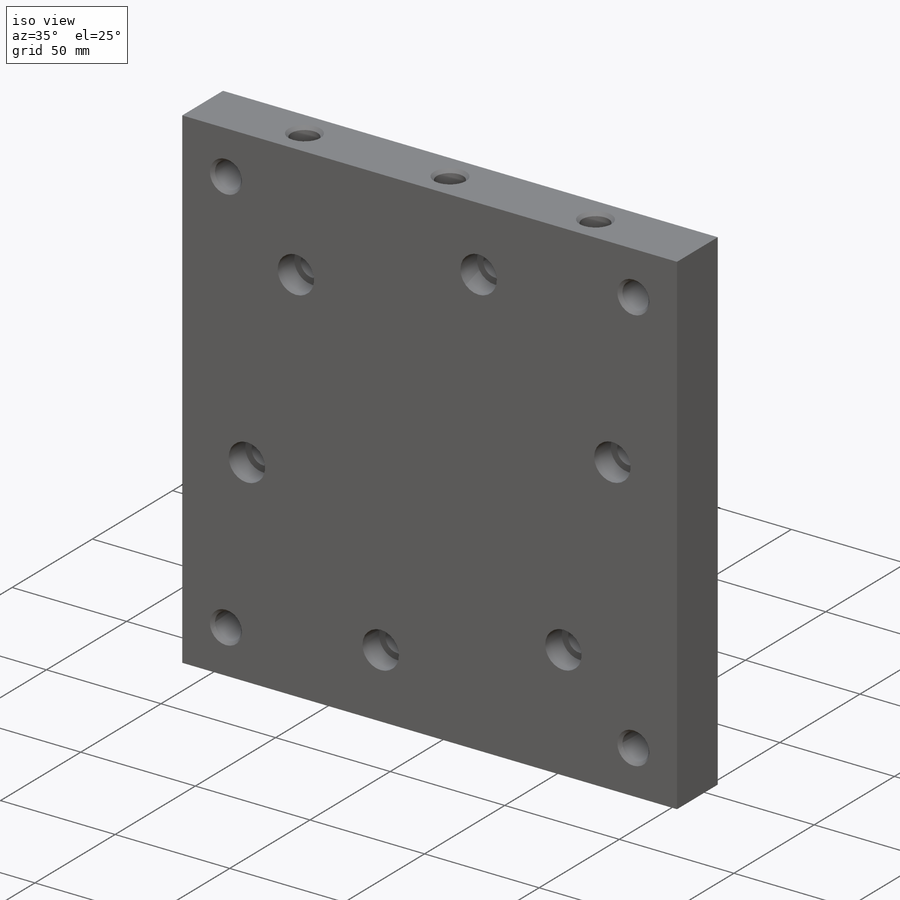
[diagram: iso view]
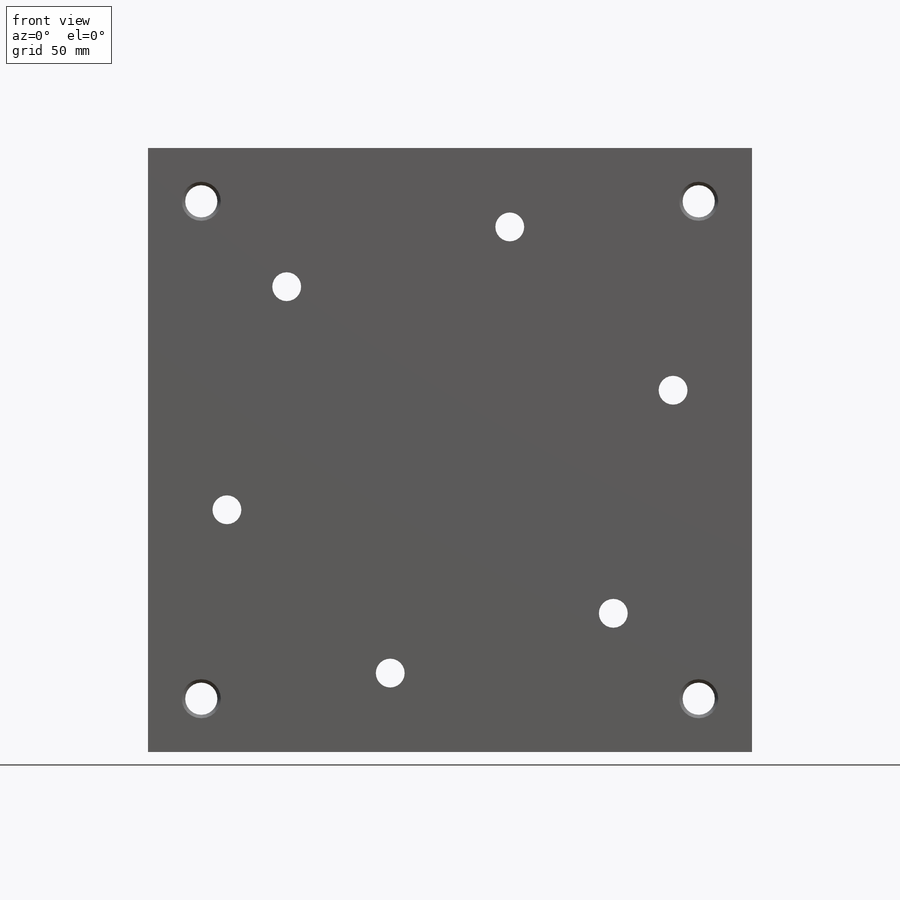
[diagram: front view]
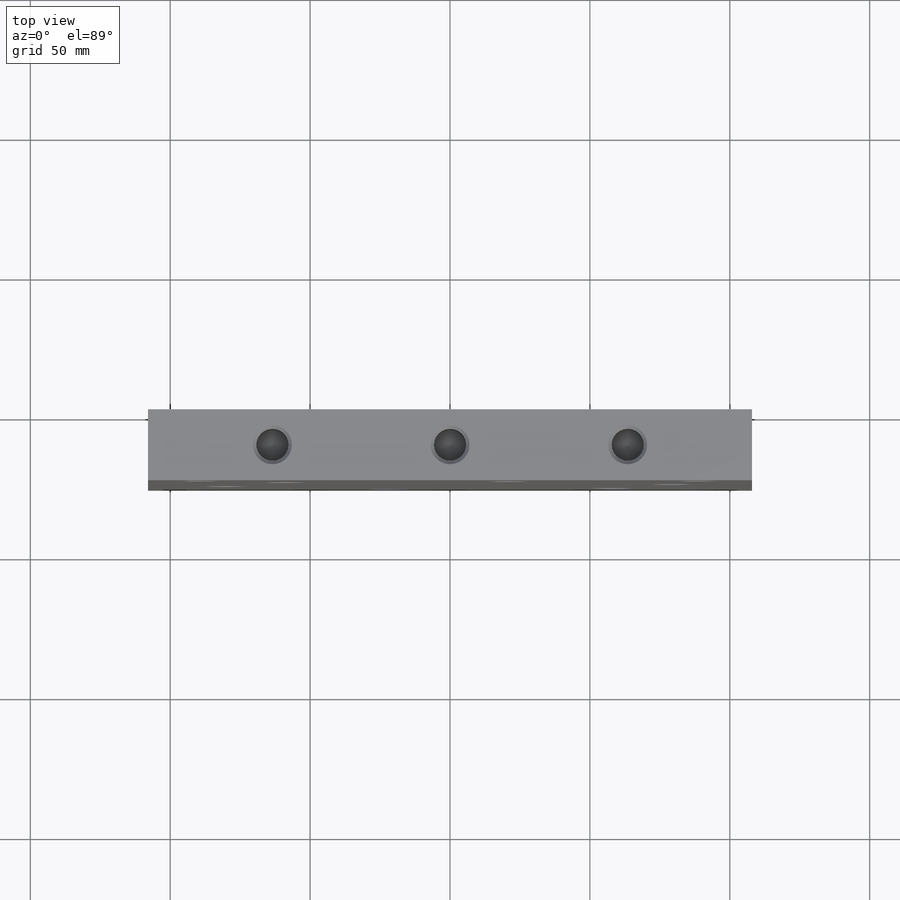
[diagram: top view]
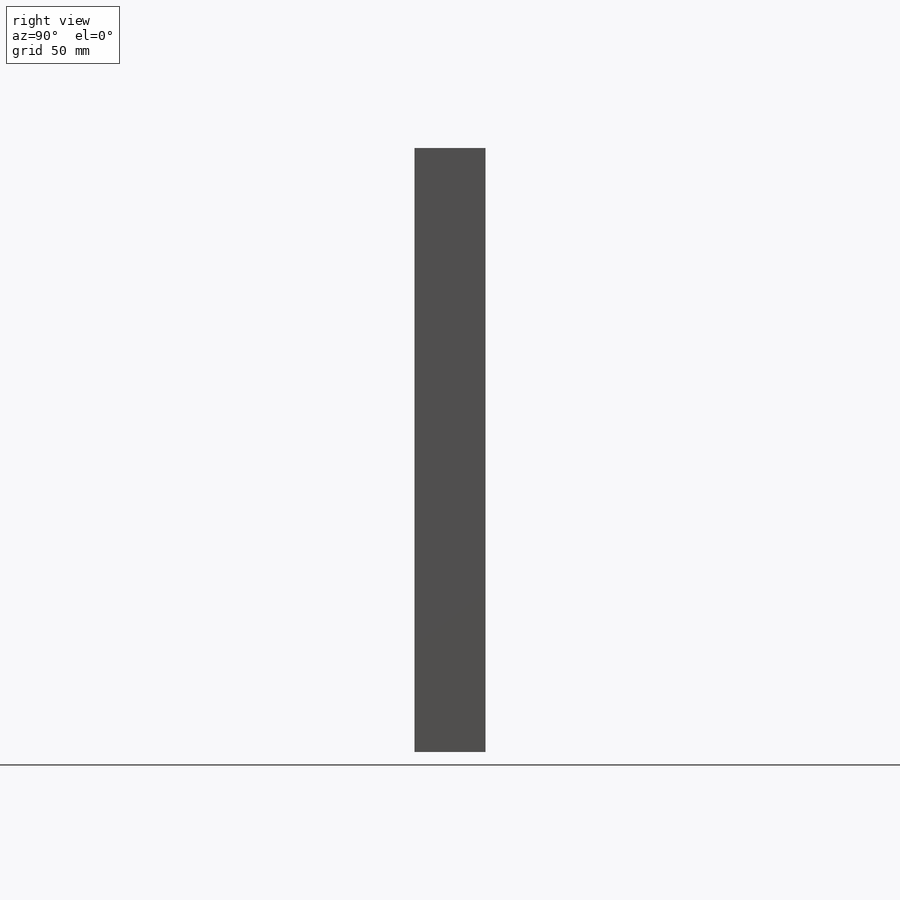
[diagram: right view]
SOLIDWORKS PART (.sldprt)
format: sldprt  version: not decoded by parser v0  size: 340,992 bytes
history: native  units: mm
features: sketch x7, thread x7, hole x3, material x1, extrude x1, pattern_circular x1 + 1 further entry (+13 scaffold rows collapsed)
feature tree (34):
  scaffold x13  (default folders/planes/origin — collapsed)
  material  "AISI 1018 Steel, Cold Rolled"
  "Origin"  ID=-1
  sketch  "Sketch1"  dims[D1=215.9mm D2=215.9mm]
  extrude  "Boss-Extrude1"  Depth=25.4mm
  hole  "1/2-20 Tapped Hole1"  Diameter=11.50874mm Depth=25.4mm
  sketch  "Sketch3"  dims[D1=177.8mm D2=177.8mm]
  sketch  "Sketch2"  dims[hole-wizard template sketch: 54 standard entries collapsed; hole parameters kept: c17.Thru Tap Drill Dia.=~11.50874mm c17.Thru Tap Drill Depth=25.4mm c17.Near C'Sink Dia.=13.97mm c17.D4=~3.666174mm c17.Near C'Sink Angle=82.0deg]
  thread  "Hole Thread1"  Diameter=12.7mm  [1 undecoded]
  thread  "Hole Thread2"  Diameter=12.7mm  [1 undecoded]
  thread  "Hole Thread3"  Diameter=12.7mm  [1 undecoded]
  thread  "Hole Thread4"  Diameter=12.7mm  [1 undecoded]
  hole  "CBORE for 3/8 Socket Head Cap Screw1"  Diameter=10.3124mm Depth=25.4mm
  sketch  "Sketch5"  dims[c1.D1=82.55mm c1.D2=~58.371665mm c2.D2=60.0deg c2.D3=~58.371665mm c3.D3=60.0deg]
  sketch  "Sketch4"  dims[hole-wizard template sketch: 42 standard entries collapsed; hole parameters kept: c12.Thru Hole Depth=25.4mm c12.C'Bore Dia.=15.875mm c12.C'Bore Depth=10.3124mm]
  hole  "1/2-20 Tapped Hole2"  Diameter=11.50874mm Depth=19.685mm
  sketch  "Sketch7"  dims[D1=12.7mm D2=63.5mm]
  sketch  "Sketch6"  dims[hole-wizard template sketch: 39 standard entries collapsed; hole parameters kept: c13.Tap Drill Dia.=~11.50874mm c13.Tap Drill Depth=19.685mm c13.Near C'Sink Dia.=13.97mm c13.D4=~33.297463mm c13.Near C'Sink Angle=82.0deg c14.D5=~14.816244mm c14.Drill Angle=118.0deg]
  thread  "Hole Thread5"  Diameter=15.875mm  [1 undecoded]
  thread  "Hole Thread6"  Diameter=15.875mm  [1 undecoded]
  thread  "Hole Thread7"  Diameter=15.875mm  [1 undecoded]
  pattern_circular  "CirPattern1"  Count=2 Angle=90deg
decode coverage: 19 of 19 modeling features carry decoded parameters; 1 rows unclassified (native names shown)
note: ~ marks probable driven/reference dimensions
note: 7 parameter values undecoded
note: suppression state not decoded; provenance and decode notes live in map.json
